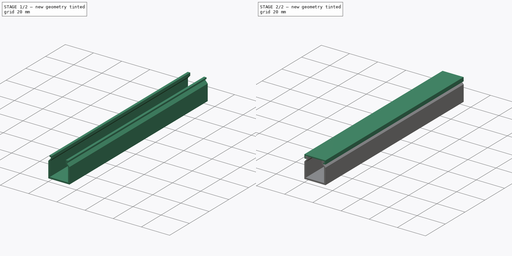
[diagram: build sequence overview — one tinted view per stage of 2, left to right]
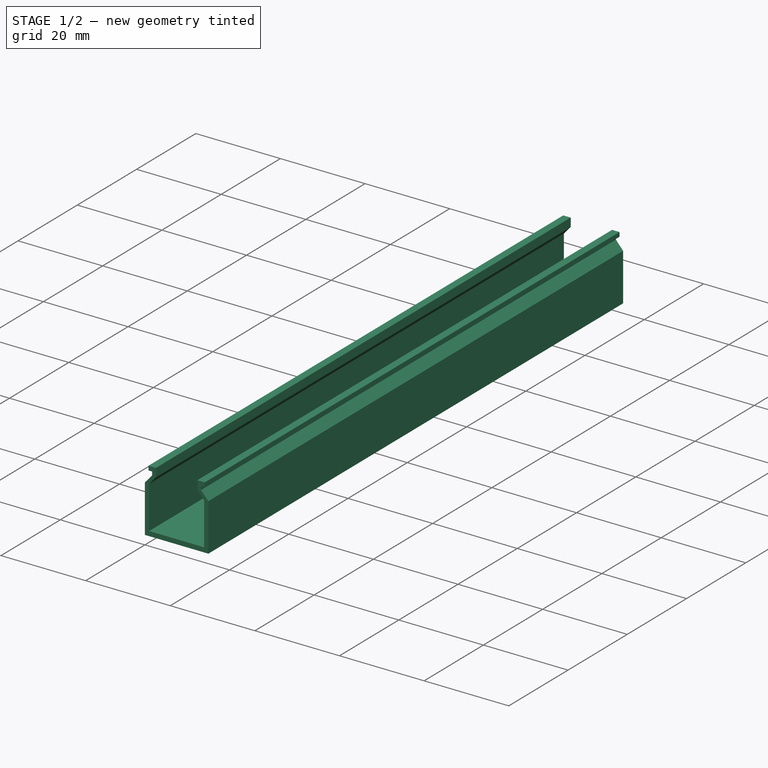
[diagram: stage 1 of 2 — iso view after this stage's code; geometry added in this stage tinted green]
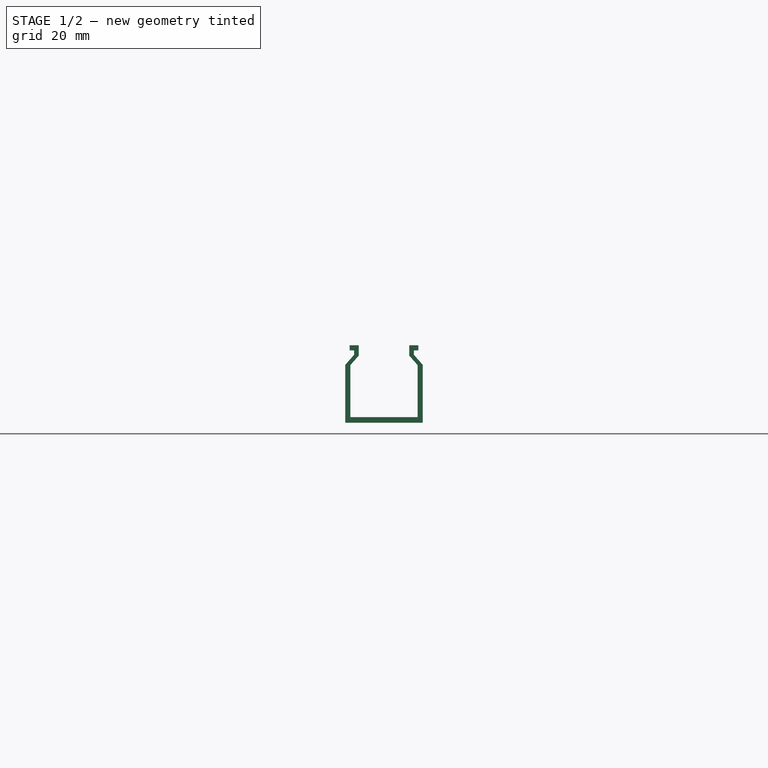
[diagram: stage 1 of 2 — front view after this stage's code; geometry added in this stage tinted green]
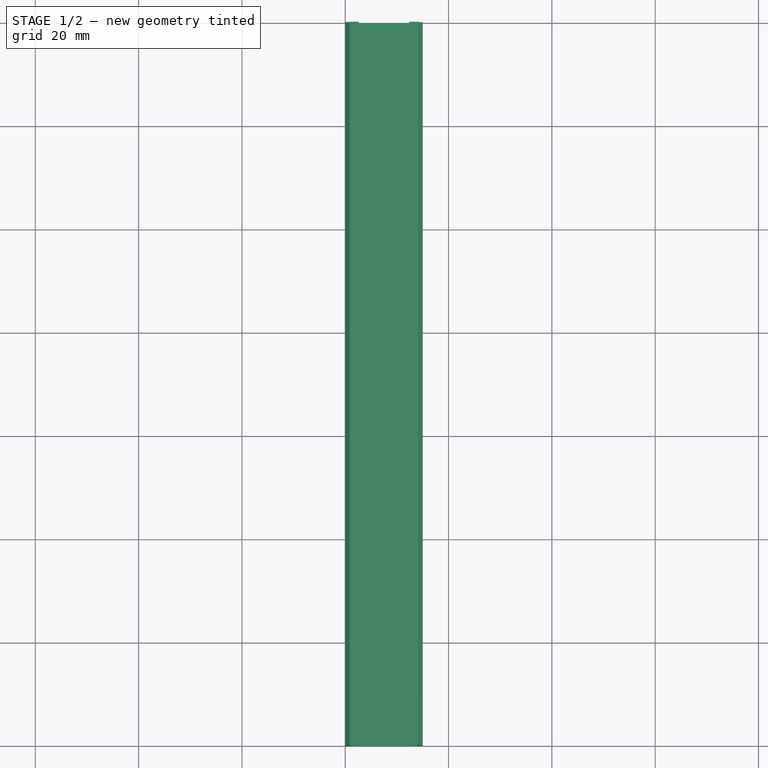
[diagram: stage 1 of 2 — top view after this stage's code; geometry added in this stage tinted green]
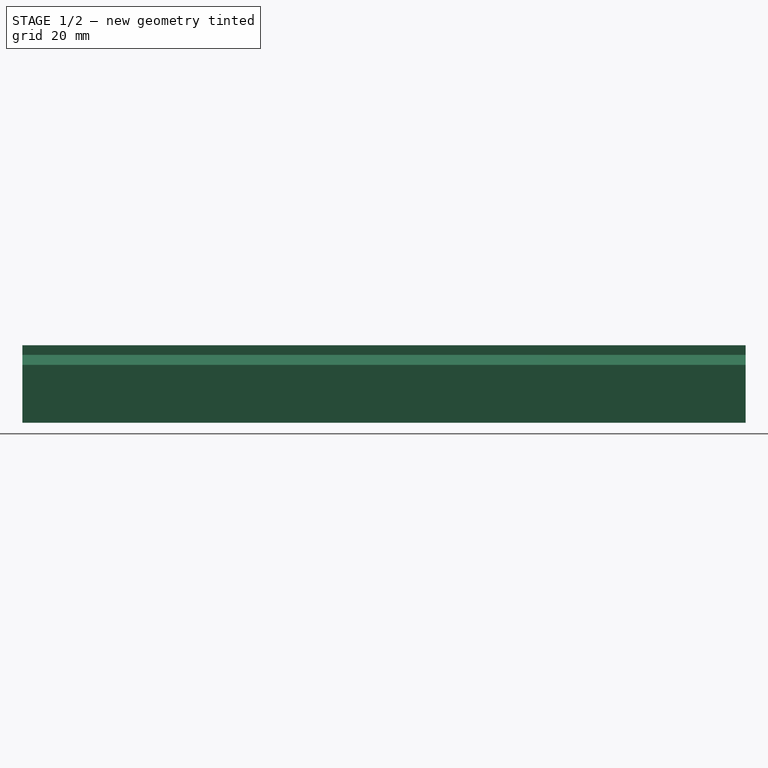
[diagram: stage 1 of 2 — right view after this stage's code; geometry added in this stage tinted green]
FCSTD DOCUMENT  (FreeCAD 0.18R16131 (Git))
Label: cabel_duct_02
License: All rights reserved
LicenseURL: http://en.wikipedia.org/wiki/All_rights_reserved
objects: Sketcher::SketchObject×2, PartDesign::Pad×2, PartDesign::Body×1
note: 7 computed .brp shape members not serialized (recipe doc carries the construction recipe); baked Part::Feature solids carry a one-line shape summary decoded from their .brp

FEATURE [Sketcher::SketchObject] Sketch
  MapMode = 5
  Placement = pos=(0,0,0) rot=(1,0,0;1.5708rad)
  Support = -> [XZ_Plane]
  sketch-geometry (21):
    g0: LineSegment StartX=1.70915 StartY=14 StartZ=0 EndX=0.847738 EndY=14 EndZ=0
    g1: LineSegment StartX=0.847738 StartY=14 StartZ=0 EndX=0.847738 EndY=15 EndZ=0
    g2: LineSegment StartX=0.847738 StartY=15 StartZ=0 EndX=2.60906 EndY=15 EndZ=0
    g3: LineSegment StartX=2.60906 StartY=15 StartZ=0 EndX=2.60906 EndY=12.9911 EndZ=0
    g4: LineSegment StartX=2.60906 StartY=12.9911 StartZ=0 EndX=1 EndY=11.1709 EndZ=0
    g5: LineSegment StartX=1 StartY=11.1709 StartZ=0 EndX=1 EndY=1.09099 EndZ=0
    g6: LineSegment StartX=1 StartY=1.09099 StartZ=0 EndX=14 EndY=1.09099 EndZ=0
    g7: LineSegment StartX=14 StartY=1.09099 StartZ=0 EndX=14 EndY=11.1709 EndZ=0
    g8: LineSegment StartX=14 StartY=11.1709 StartZ=0 EndX=12.3909 EndY=12.9911 EndZ=0
    g9: LineSegment StartX=12.3909 StartY=12.9911 StartZ=0 EndX=12.3909 EndY=15 EndZ=0
    g10: LineSegment StartX=12.3909 StartY=15 StartZ=0 EndX=14.1523 EndY=15 EndZ=0
    g11: LineSegment StartX=14.1523 StartY=15 StartZ=0 EndX=14.1523 EndY=14 EndZ=0
    g12: LineSegment StartX=14.1523 StartY=14 StartZ=0 EndX=13.2908 EndY=14 EndZ=0
    g13: LineSegment StartX=13.2908 StartY=14 StartZ=0 EndX=13.2908 EndY=13.1456 EndZ=0
    g14: LineSegment StartX=13.2908 StartY=13.1456 StartZ=0 EndX=15 EndY=11.2122 EndZ=0
    g15: LineSegment StartX=15 StartY=11.2122 StartZ=0 EndX=15 EndY=0 EndZ=0
    g16: LineSegment StartX=15 StartY=0 StartZ=0 EndX=0 EndY=0 EndZ=0
    g17: LineSegment StartX=0 StartY=0 StartZ=0 EndX=0 EndY=11.2122 EndZ=0
    g18: LineSegment StartX=0 StartY=11.2122 StartZ=0 EndX=1.70915 EndY=13.1456 EndZ=0
    g19: LineSegment StartX=1.70915 StartY=13.1456 StartZ=0 EndX=1.70915 EndY=14 EndZ=0
    g20: LineSegment [constr] StartX=7.5 StartY=18.774 StartZ=0 EndX=7.5 EndY=-6.68818 EndZ=0
  constraints (46):
    c: Coincident(g0,g1)
    c: Coincident(g1,g2)
    c: Coincident(g2,g3)
    c: Coincident(g3,g4)
    c: Coincident(g4,g5)
    c: Coincident(g5,g6)
    c: Coincident(g6,g7)
    c: Coincident(g7,g8)
    c: Coincident(g8,g9)
    c: Coincident(g9,g10)
    c: Coincident(g10,g11)
    c: Coincident(g11,g12)
    c: Coincident(g12,g13)
    c: Coincident(g13,g14)
    c: Coincident(g14,g15)
    c: Coincident(g15,g16)
    c: Coincident(g16,g17)
    c: Coincident(g17,g18)
    c: Coincident(g18,g19)
    c: Coincident(g0,g19)
    c: Vertical(g19)
    c: Horizontal(g0)
    c: Vertical(g1)
    c: Horizontal(g2)
    c: Vertical(g3)
    c: Vertical(g5)
    c: Vertical(g17)
    c: Horizontal(g6)
    c: Vertical(g9)
    c: Horizontal(g10)
    c: Horizontal(g12)
    c: Vertical(g11)
    c: DistanceX(g16,g16) = 15
    c: DistanceX(g16,g5) = 1
    c: Coincident(g16,g-1)
    c: DistanceY(g16,g1) = 15
    c: Symmetric(g16,g15,g20)
    c: Symmetric(g5,g6,g20)
    c: Symmetric(g4,g7,g20)
    c: Parallel(g18,g4)
    c: Symmetric(g1,g10,g20)
    c: Symmetric(g3,g8,g20)
    c: Symmetric(g14,g17,g20)
    c: Symmetric(g18,g13,g20)
    c: Symmetric(g0,g12,g20)
    c: DistanceY(g11,g11) = 1
FEATURE [PartDesign::Pad] Pad
  Length = 140
  Length2 = 100
  Placement = pos=(0,0,0) rot=(1,0,0;1.5708rad)
  Profile = -> Sketch
  Type = 0
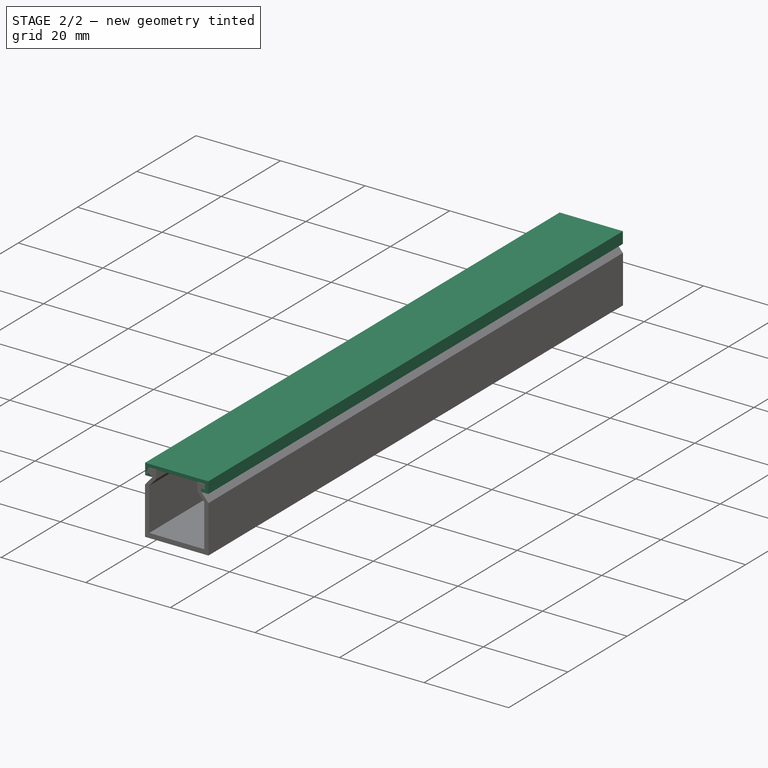
[diagram: stage 2 of 2 — iso view after this stage's code; geometry added in this stage tinted green]
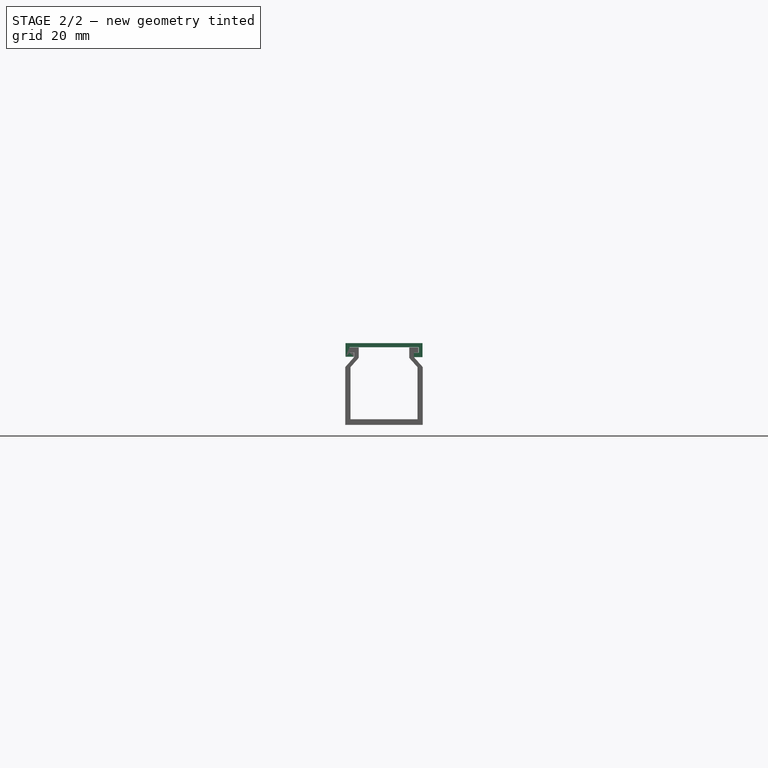
[diagram: stage 2 of 2 — front view after this stage's code; geometry added in this stage tinted green]
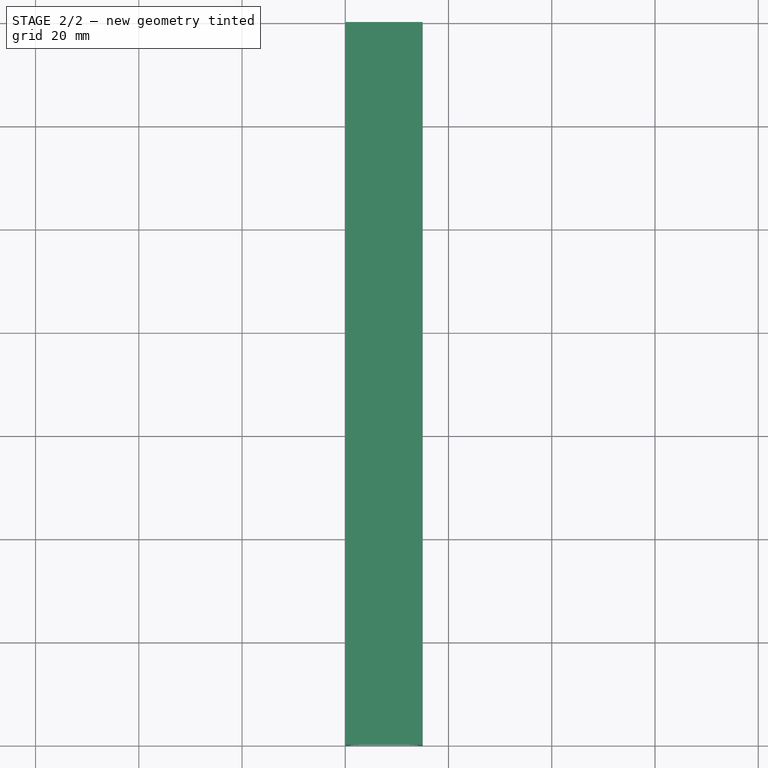
[diagram: stage 2 of 2 — top view after this stage's code; geometry added in this stage tinted green]
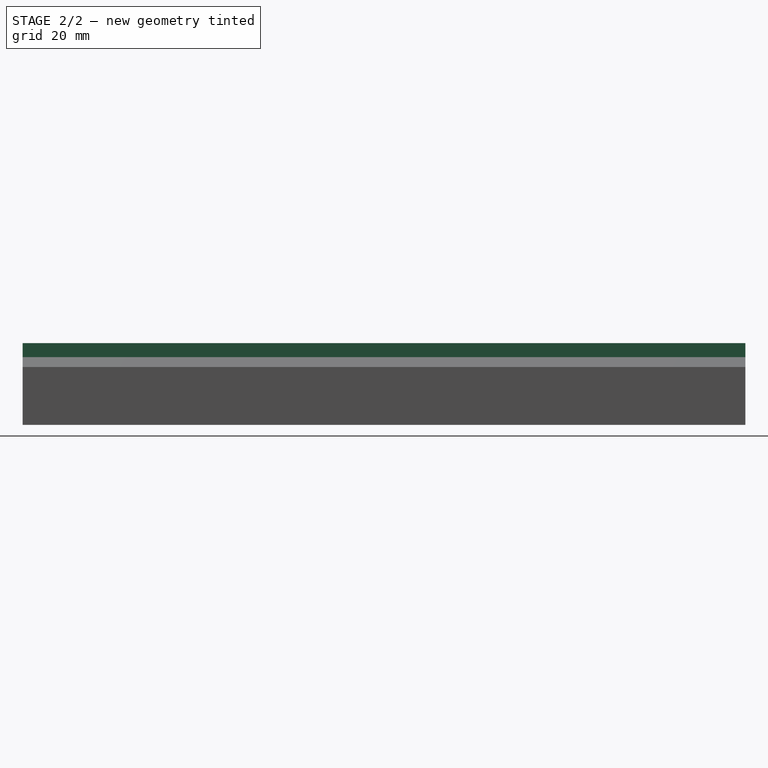
[diagram: stage 2 of 2 — right view after this stage's code; geometry added in this stage tinted green]
FEATURE [Sketcher::SketchObject] Sketch001
  MapMode = 5
  Placement = pos=(0,0,0) rot=(1,0,0;1.5708rad)
  Support = -> [XZ_Plane]
  sketch-geometry (12):
    g0: LineSegment StartX=1.6709 StartY=13.9824 StartZ=0 EndX=0.833981 EndY=13.9824 EndZ=0
    g1: LineSegment StartX=0.833981 StartY=13.9824 StartZ=0 EndX=0.833981 EndY=15.0478 EndZ=0
    g2: LineSegment StartX=0.833981 StartY=15.0478 StartZ=0 EndX=14.2199 EndY=15.0478 EndZ=0
    g3: LineSegment StartX=14.2199 StartY=15.0478 StartZ=0 EndX=14.2199 EndY=13.9702 EndZ=0
    g4: LineSegment StartX=14.2199 StartY=13.9702 StartZ=0 EndX=13.278 EndY=13.9702 EndZ=0
    g5: LineSegment StartX=13.278 StartY=13.9702 StartZ=0 EndX=13.278 EndY=13.1404 EndZ=0
    g6: LineSegment StartX=13.278 StartY=13.1404 StartZ=0 EndX=14.9677 EndY=13.1404 EndZ=0
    g7: LineSegment StartX=14.9677 StartY=13.1404 StartZ=0 EndX=14.9677 EndY=15.8558 EndZ=0
    g8: LineSegment StartX=14.9677 StartY=15.8558 StartZ=0 EndX=0.035527 EndY=15.8558 EndZ=0
    g9: LineSegment StartX=0.035527 StartY=15.8558 StartZ=0 EndX=0.035527 EndY=13.1985 EndZ=0
    g10: LineSegment StartX=0.035527 StartY=13.1985 StartZ=0 EndX=1.6709 EndY=13.1985 EndZ=0
    g11: LineSegment StartX=1.6709 StartY=13.1985 StartZ=0 EndX=1.6709 EndY=13.9824 EndZ=0
  constraints (24):
    c: Coincident(g0,g1)
    c: Coincident(g1,g2)
    c: Coincident(g2,g3)
    c: Coincident(g3,g4)
    c: Coincident(g4,g5)
    c: Coincident(g5,g6)
    c: Coincident(g6,g7)
    c: Coincident(g7,g8)
    c: Coincident(g8,g9)
    c: Coincident(g9,g10)
    c: Coincident(g10,g11)
    c: Horizontal(g10)
    c: Horizontal(g6)
    c: Horizontal(g4)
    c: Horizontal(g0)
    c: Horizontal(g2)
    c: Horizontal(g8)
    c: Vertical(g1)
    c: Vertical(g11)
    c: Vertical(g5)
    c: Vertical(g7)
    c: Vertical(g3)
    c: Coincident(g11,g0)
    c: Vertical(g9)
FEATURE [PartDesign::Pad] Pad001
  BaseFeature = -> Pad
  Length = 140
  Length2 = 100
  Placement = pos=(0,0,0) rot=(1,0,0;1.5708rad)
  Profile = -> Sketch001
  Type = 0
FEATURE [PartDesign::Body] Body
  Group = -> [Sketch,Pad,Sketch001,Pad001]
  Origin = -> Origin
  Tip = -> Pad001
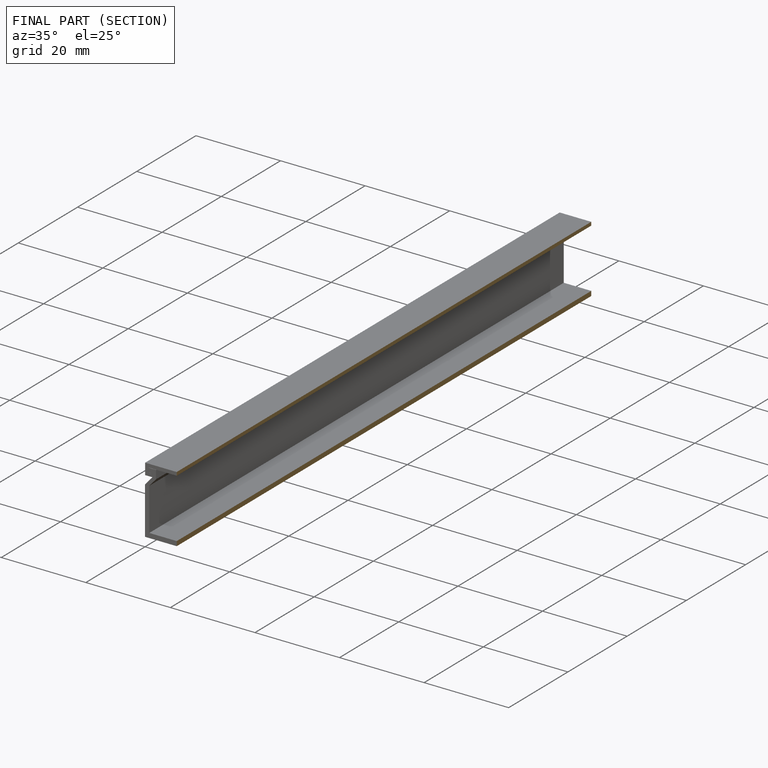
[diagram: finished part — half-section view (interior)]
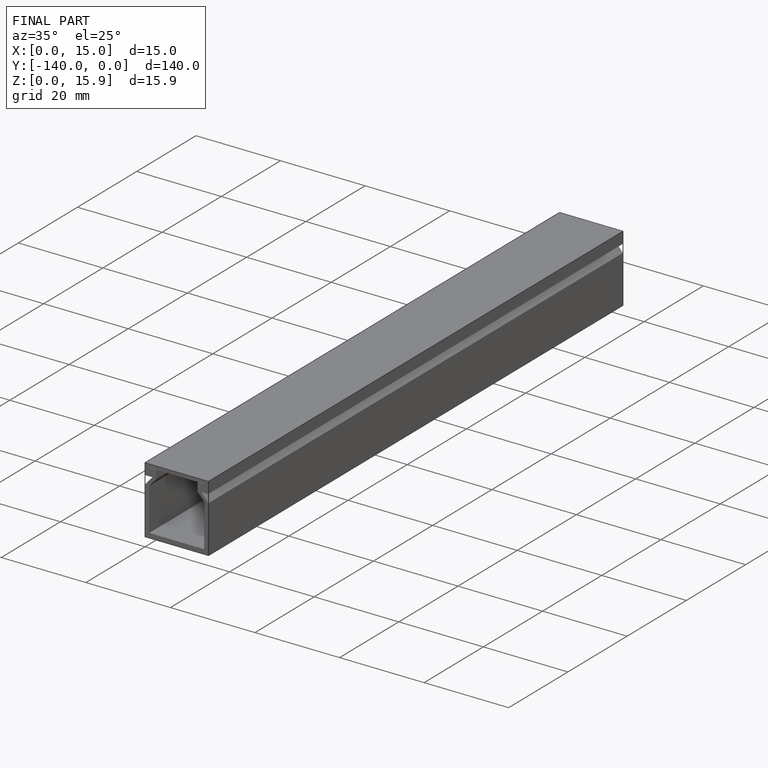
[diagram: finished part — iso view with bounding-box wireframe]
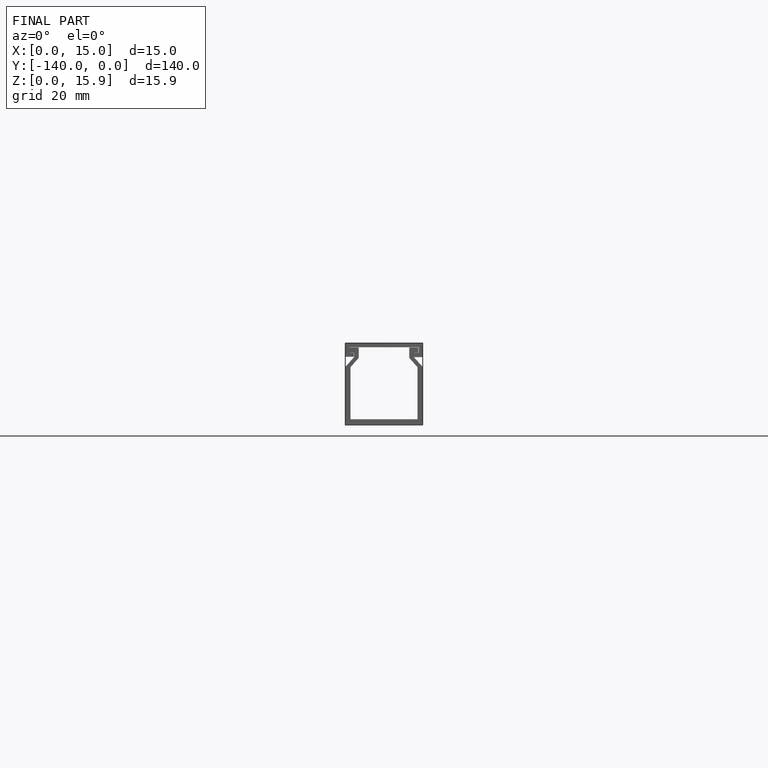
[diagram: finished part — front view with bounding-box wireframe]
